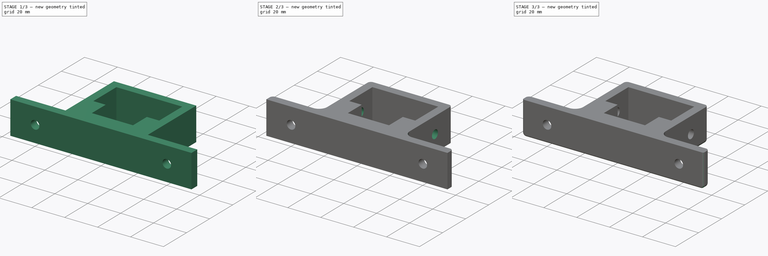
[diagram: build sequence overview — one tinted view per stage of 3, left to right]
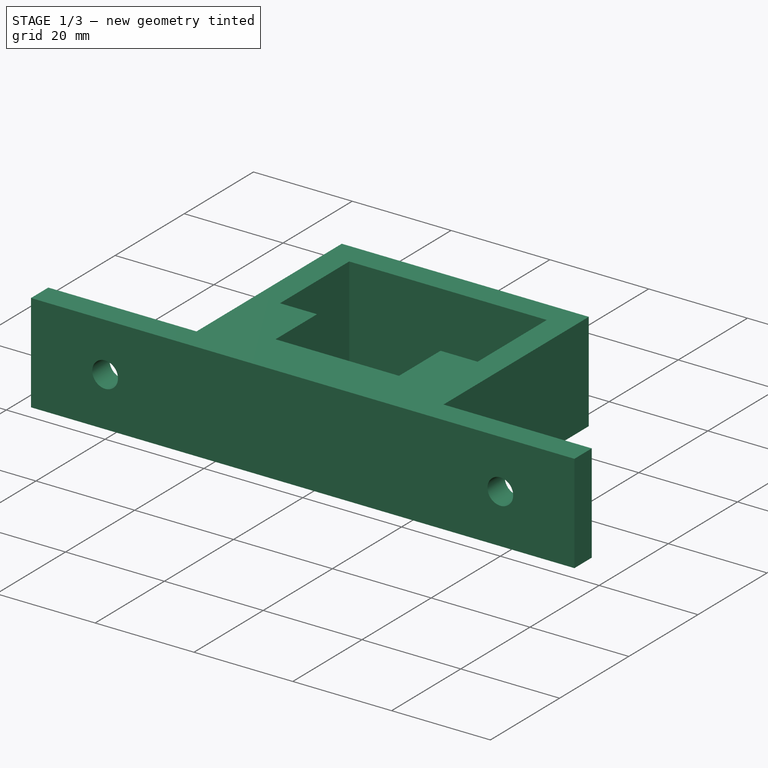
[diagram: stage 1 of 3 — iso view after this stage's code; geometry added in this stage tinted green]
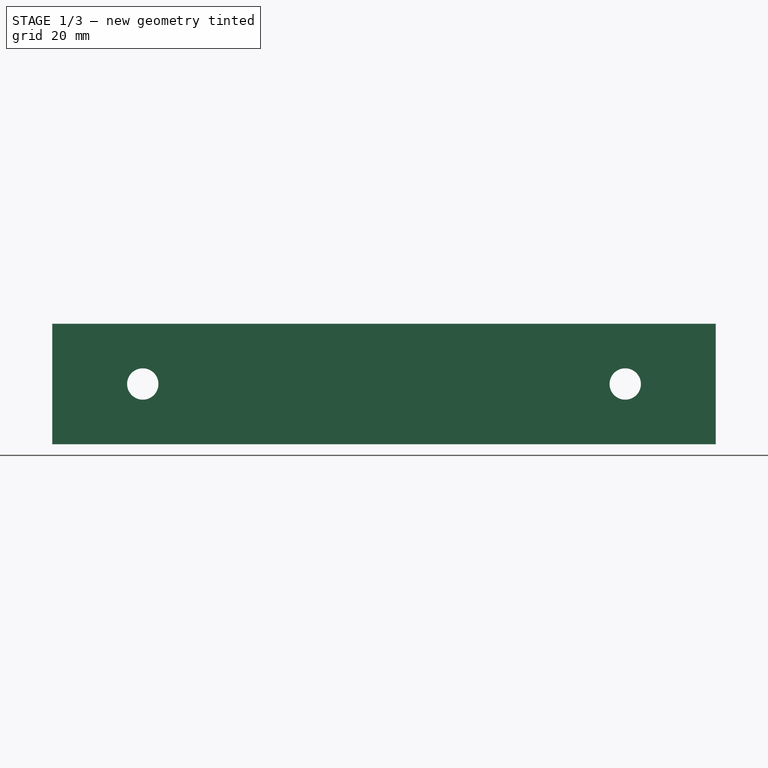
[diagram: stage 1 of 3 — front view after this stage's code; geometry added in this stage tinted green]
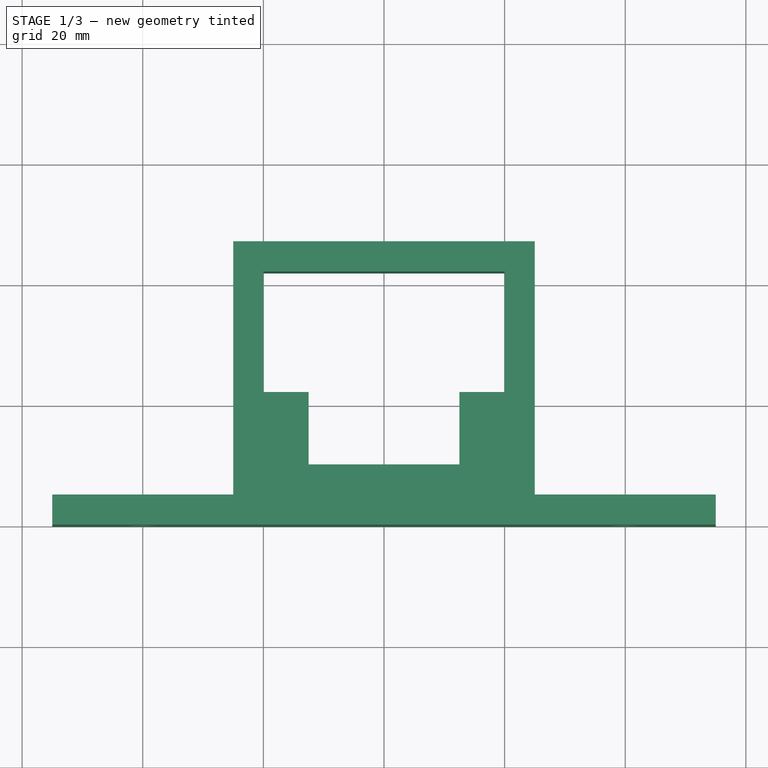
[diagram: stage 1 of 3 — top view after this stage's code; geometry added in this stage tinted green]
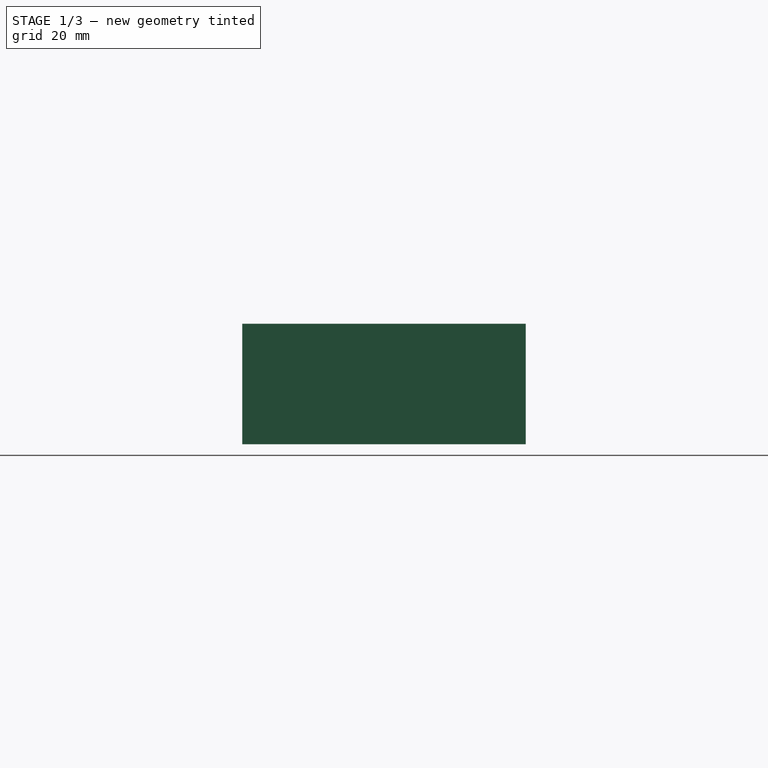
[diagram: stage 1 of 3 — right view after this stage's code; geometry added in this stage tinted green]
FCSTD DOCUMENT  (FreeCAD 1.0R38806 (Git))
Label: 40_20_mount
License: All rights reserved
LicenseURL: http://en.wikipedia.org/wiki/All_rights_reserved
objects: PartDesign::Fillet×4, Sketcher::SketchObject×3, PartDesign::Pocket×2, PartDesign::Pad×1, PartDesign::Body×1
note: 28 computed .brp shape members not serialized (recipe doc carries the construction recipe); baked Part::Feature solids carry a one-line shape summary decoded from their .brp

FEATURE [Sketcher::SketchObject] Sketch
  ArcFitTolerance = 1e-06
  AttachmentSupport = -> [XY_Plane]
  FullyConstrained = true
  MakeInternals = false
  MapMode = 5
  sketch-geometry (16):
    g0: LineSegment StartX=-55 StartY=0 StartZ=0 EndX=-55 EndY=5 EndZ=0
    g1: LineSegment StartX=-55 StartY=5 StartZ=0 EndX=-25 EndY=5 EndZ=0
    g2: LineSegment StartX=-25 StartY=5 StartZ=0 EndX=-25 EndY=47 EndZ=0
    g3: LineSegment StartX=-25 StartY=47 StartZ=0 EndX=25 EndY=47 EndZ=0
    g4: LineSegment StartX=25 StartY=47 StartZ=0 EndX=25 EndY=5 EndZ=0
    g5: LineSegment StartX=25 StartY=5 StartZ=0 EndX=55 EndY=5 EndZ=0
    g6: LineSegment StartX=55 StartY=5 StartZ=0 EndX=55 EndY=0 EndZ=0
    g7: LineSegment StartX=55 StartY=0 StartZ=0 EndX=-55 EndY=0 EndZ=0
    g8: LineSegment StartX=-20 StartY=42 StartZ=0 EndX=-20 EndY=22 EndZ=0
    g9: LineSegment StartX=-20 StartY=22 StartZ=0 EndX=-12.5 EndY=22 EndZ=0
    g10: LineSegment StartX=20 StartY=22 StartZ=0 EndX=20 EndY=42 EndZ=0
    g11: LineSegment StartX=20 StartY=42 StartZ=0 EndX=-20 EndY=42 EndZ=0
    g12: LineSegment StartX=-12.5 StartY=22 StartZ=0 EndX=-12.5 EndY=10 EndZ=0
    g13: LineSegment StartX=-12.5 StartY=10 StartZ=0 EndX=12.5 EndY=10 EndZ=0
    g14: LineSegment StartX=12.5 StartY=10 StartZ=0 EndX=12.5 EndY=22 EndZ=0
    g15: LineSegment StartX=12.5 StartY=22 StartZ=0 EndX=20 EndY=22 EndZ=0
  constraints (46):
    c: PointOnObject(g0,g-1)
    c: Vertical(g0)
    c: Coincident(g0,g1)
    c: Horizontal(g1)
    c: Coincident(g1,g2)
    c: Vertical(g2)
    c: Coincident(g2,g3)
    c: Coincident(g3,g4)
    c: Vertical(g4)
    c: Coincident(g4,g5)
    c: Horizontal(g5)
    c: Coincident(g5,g6)
    c: PointOnObject(g6,g-1)
    c: Coincident(g6,g7)
    c: Coincident(g7,g0)
    c: Coincident(g8,g9)
    c: Coincident(g15,g10)
    c: Coincident(g10,g11)
    c: Coincident(g11,g8)
    c: Vertical(g8)
    c: Vertical(g10)
    c: Horizontal(g9)
    c: Coincident(g12,g13)
    c: Horizontal(g13)
    c: Coincident(g13,g14)
    c: PointOnObject(g14,g15)
    c: Vertical(g14)
    c: Coincident(g9,g12)
    c: PointOnObject(g15,g14)
    c: Vertical(g12)
    c: Symmetric(g10,g8,g-2)
    c: Symmetric(g3,g2,g-2)
    c: Symmetric(g9,g14,g-2)
    c: DistanceX(g11,g11) = 40
    c: DistanceY(g10,g10) = 20
    c: Horizontal(g15)
    c: DistanceY(g14,g14) = 12
    c: DistanceX(g10,g3) = 5
    c: DistanceY(g10,g3) = 5
    c: DistanceY(g6,g4) = 5
    c: DistanceY(g0,g0) = 5
    c: DistanceY(g-1,g12) = 10
    c: DistanceX(g13,g13) = 25
    c: DistanceX(g5,g5) = 30
    c: Vertical(g6)
    c: DistanceX(g1,g1) = 30
FEATURE [PartDesign::Pad] Pad
  Direction = (0,0,1)
  Length = 20
  Length2 = 10
  Profile = -> Sketch
  ReferenceAxis = -> Sketch [N_Axis]
  Suppressed = false
  Type = 0
FEATURE [Sketcher::SketchObject] Sketch001
  ArcFitTolerance = 1e-06
  AttachmentSupport = -> [Pad]
  ExternalGeometry = -> [Pad]
  FullyConstrained = true
  MakeInternals = false
  MapMode = 5
  Placement = pos=(0,5,0) rot=(0,0.707107,0.707107;3.14159rad)
  sketch-geometry (2):
    g0: Circle CenterX=-40 CenterY=10 CenterZ=0 NormalX=0 NormalY=0 NormalZ=1 AngleXU=0 Radius=2.6
    g1: Circle CenterX=40 CenterY=10 CenterZ=0 NormalX=0 NormalY=0 NormalZ=1 AngleXU=0 Radius=2.6
  constraints (6):
    c: Diameter(g0) = 5.2
    c: Diameter(g1) = 5.2
    c: DistanceX(g1,g-4) = 15
    c: DistanceY(g1,g-4) = 10
    c: DistanceX(g-3,g0) = 15
    c: DistanceY(g0,g-3) = 10
FEATURE [PartDesign::Pocket] Pocket
  BaseFeature = -> Pad
  Direction = (0,-1,2e-16)
  Length = 5
  Length2 = 5
  Profile = -> Sketch001
  ReferenceAxis = -> Sketch001 [N_Axis]
  Suppressed = false
  Type = 0
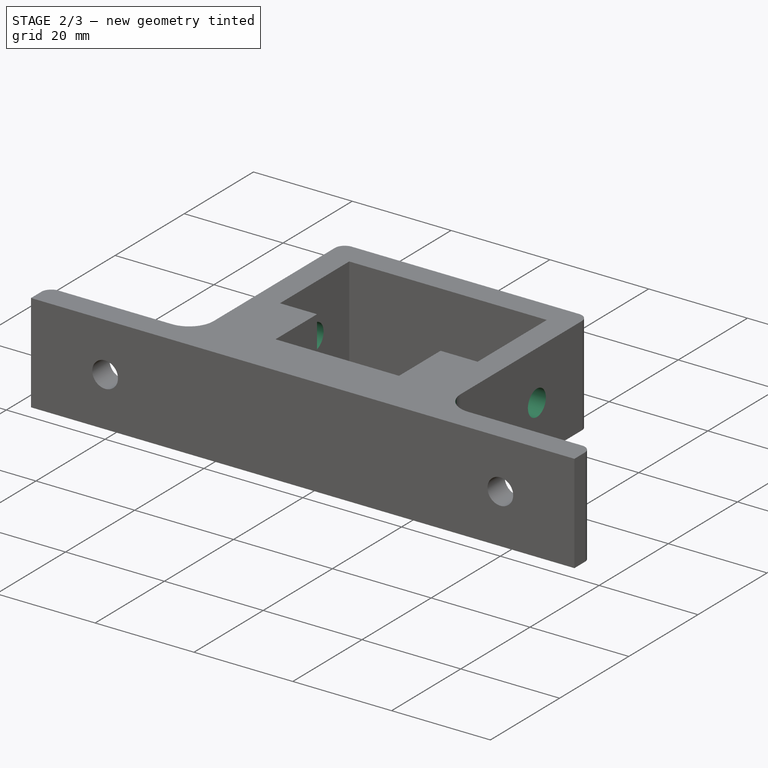
[diagram: stage 2 of 3 — iso view after this stage's code; geometry added in this stage tinted green]
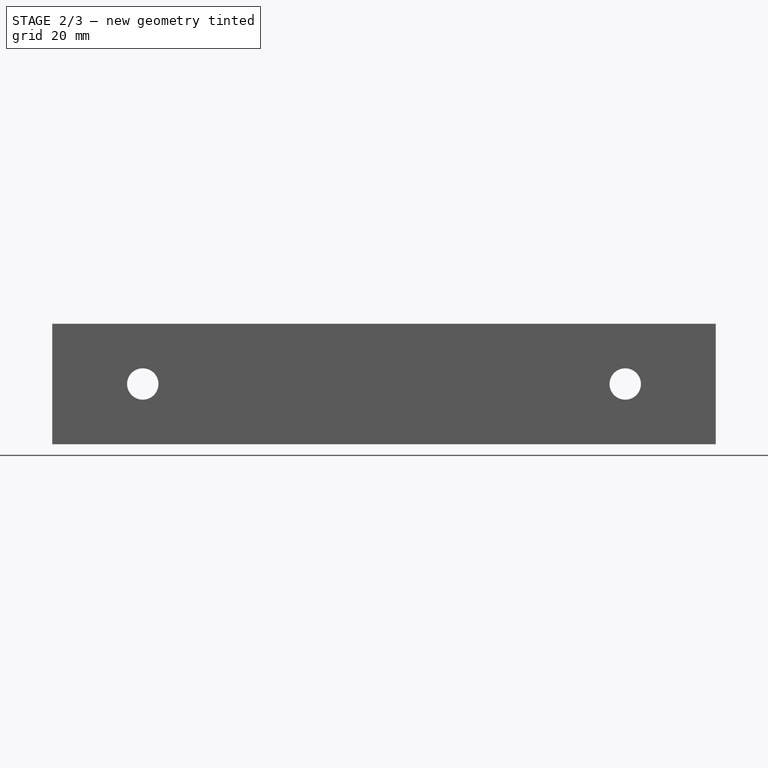
[diagram: stage 2 of 3 — front view after this stage's code; geometry added in this stage tinted green]
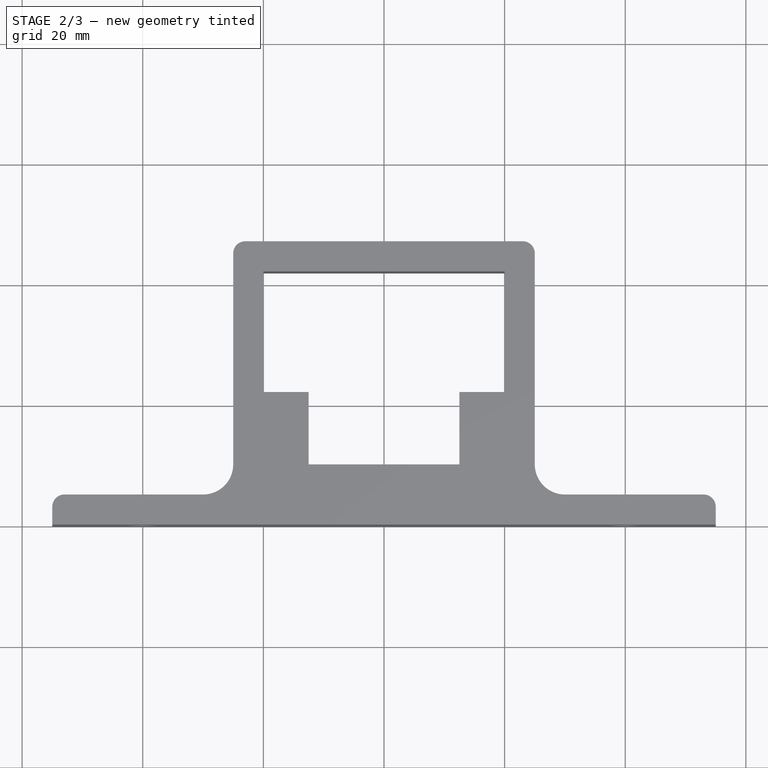
[diagram: stage 2 of 3 — top view after this stage's code; geometry added in this stage tinted green]
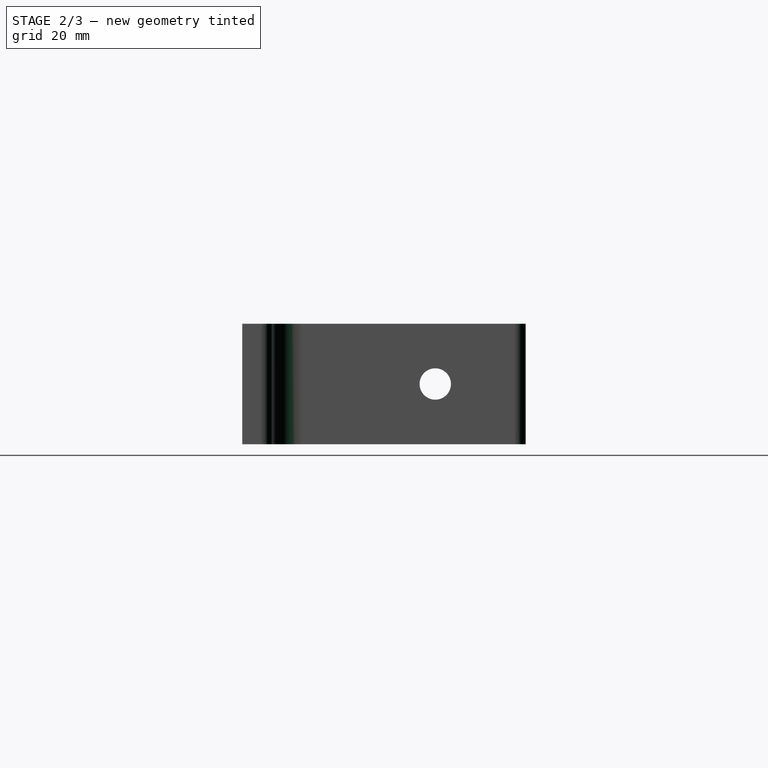
[diagram: stage 2 of 3 — right view after this stage's code; geometry added in this stage tinted green]
FEATURE [Sketcher::SketchObject] Sketch002
  ArcFitTolerance = 1e-06
  AttachmentSupport = -> [Pocket]
  ExternalGeometry = -> [Pocket]
  FullyConstrained = true
  MakeInternals = false
  MapMode = 5
  Placement = pos=(20,0,0) rot=(0.57735,-0.57735,-0.57735;2.0944rad)
  sketch-geometry (1):
    g0: Circle CenterX=-32 CenterY=10 CenterZ=0 NormalX=0 NormalY=0 NormalZ=1 AngleXU=0 Radius=2.6
  constraints (3):
    c: Diameter(g0) = 5.2
    c: DistanceX(g0,g-3) = 10
    c: DistanceY(g0,g-3) = 10
FEATURE [PartDesign::Pocket] Pocket001
  BaseFeature = -> Pocket
  Direction = (1,0,0)
  Length = 5
  Length2 = 5
  Midplane = true
  Profile = -> Sketch002
  ReferenceAxis = -> Sketch002 [N_Axis]
  Suppressed = false
  Type = 1
FEATURE [PartDesign::Fillet] Fillet
  Base = -> Pocket001 [Edge47,Edge12]
  BaseFeature = -> Pocket001
  Radius = 5
  SupportTransform = false
  Suppressed = false
  UseAllEdges = false
FEATURE [PartDesign::Fillet] Fillet001
  Base = -> Fillet [Edge3,Edge44,Edge48,Edge49]
  BaseFeature = -> Fillet
  Radius = 2
  SupportTransform = false
  Suppressed = false
  UseAllEdges = false
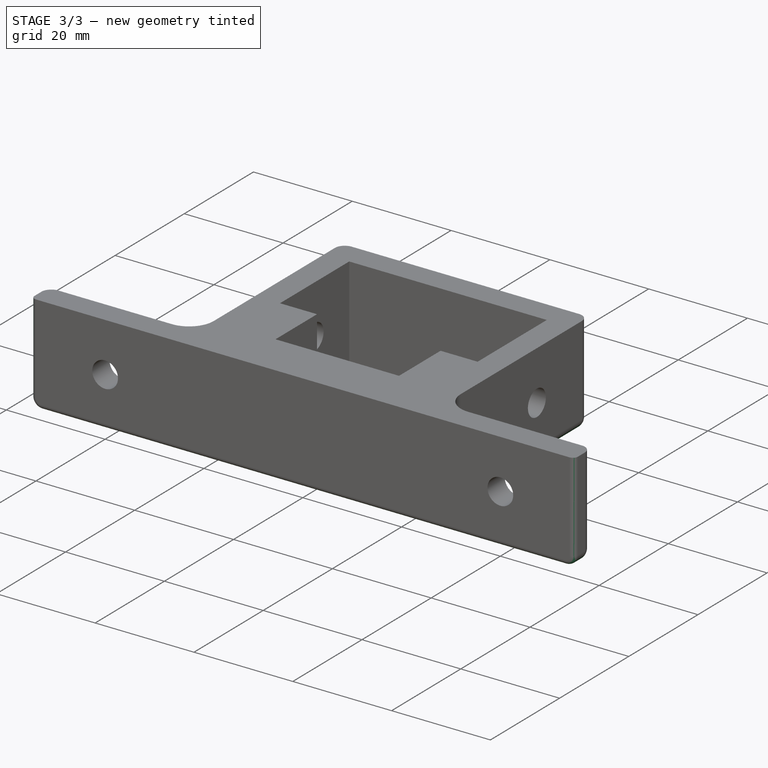
[diagram: stage 3 of 3 — iso view after this stage's code; geometry added in this stage tinted green]
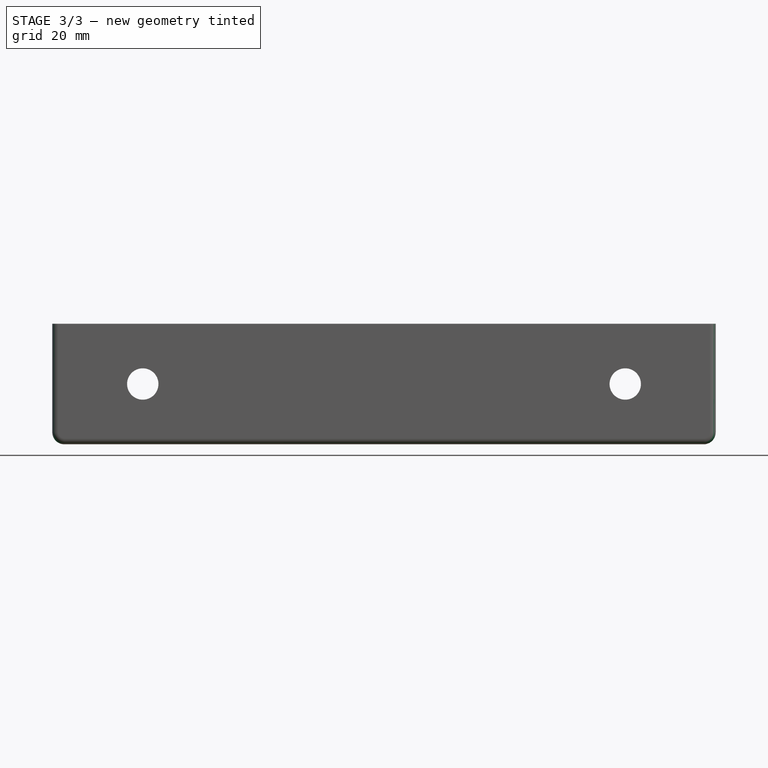
[diagram: stage 3 of 3 — front view after this stage's code; geometry added in this stage tinted green]
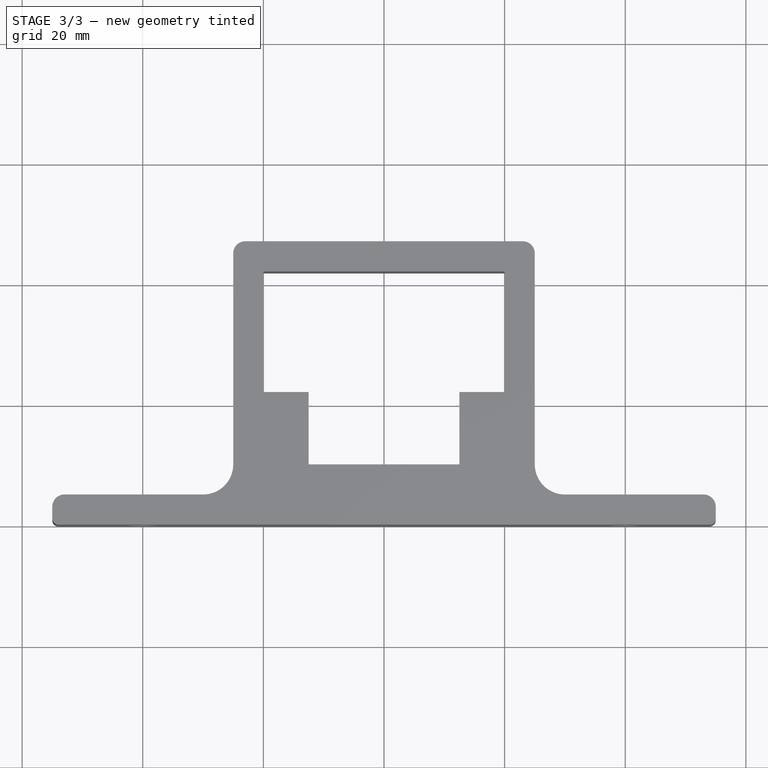
[diagram: stage 3 of 3 — top view after this stage's code; geometry added in this stage tinted green]
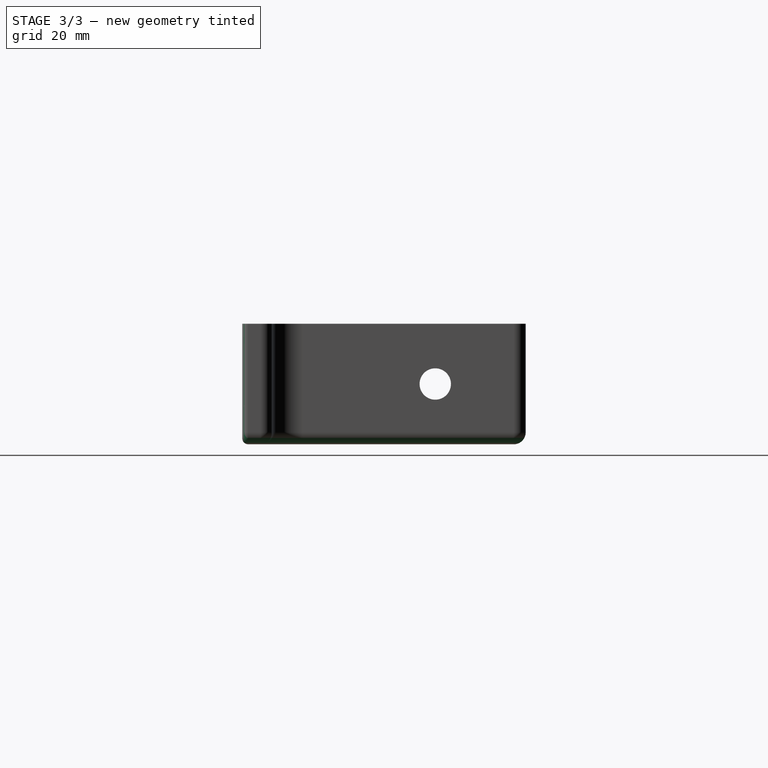
[diagram: stage 3 of 3 — right view after this stage's code; geometry added in this stage tinted green]
FEATURE [PartDesign::Fillet] Fillet002
  Base = -> Fillet001 [Edge17]
  BaseFeature = -> Fillet001
  Radius = 2
  SupportTransform = false
  Suppressed = false
  UseAllEdges = false
FEATURE [PartDesign::Fillet] Fillet003
  Base = -> Fillet002 [Edge40]
  BaseFeature = -> Fillet002
  Radius = 1
  SupportTransform = false
  Suppressed = false
  UseAllEdges = false
FEATURE [PartDesign::Body] Body
  AllowCompound = false
  Group = -> [Sketch,Pad,Sketch001,Pocket,Sketch002,Pocket001,Fillet,Fillet001,Fillet002,Fillet003]
  Origin = -> Origin
  Tip = -> Fillet003
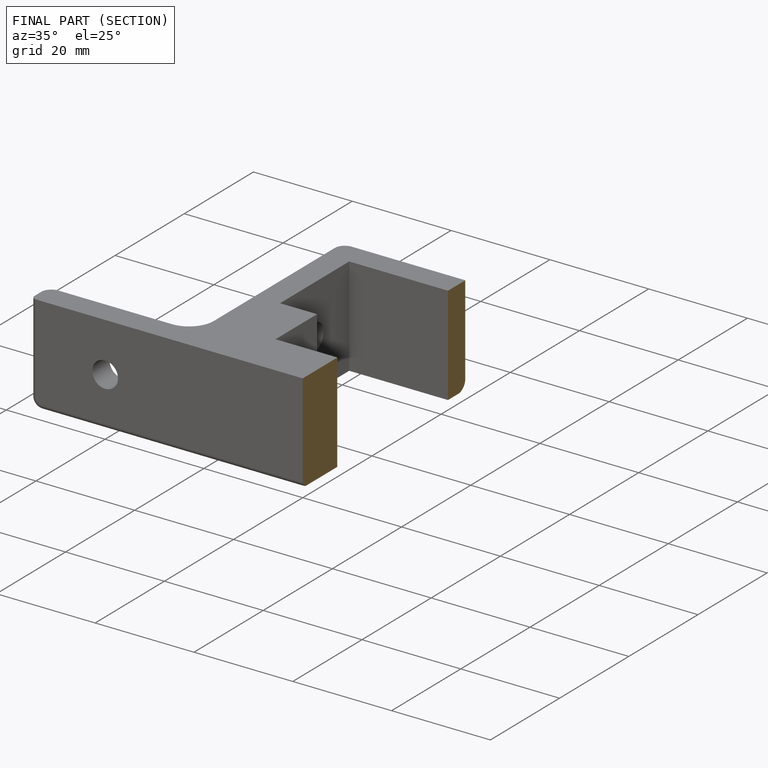
[diagram: finished part — half-section view (interior)]
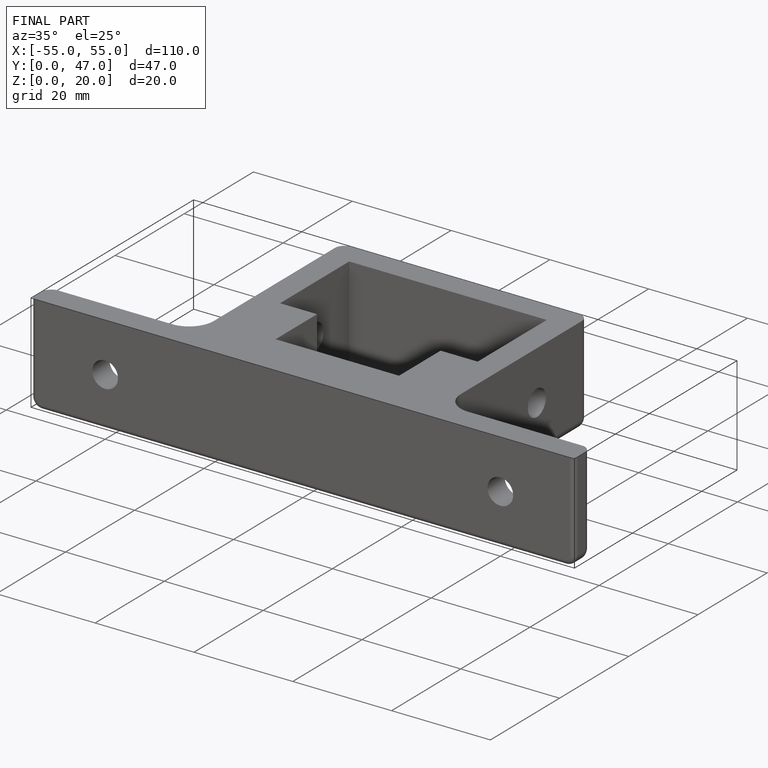
[diagram: finished part — iso view with bounding-box wireframe]
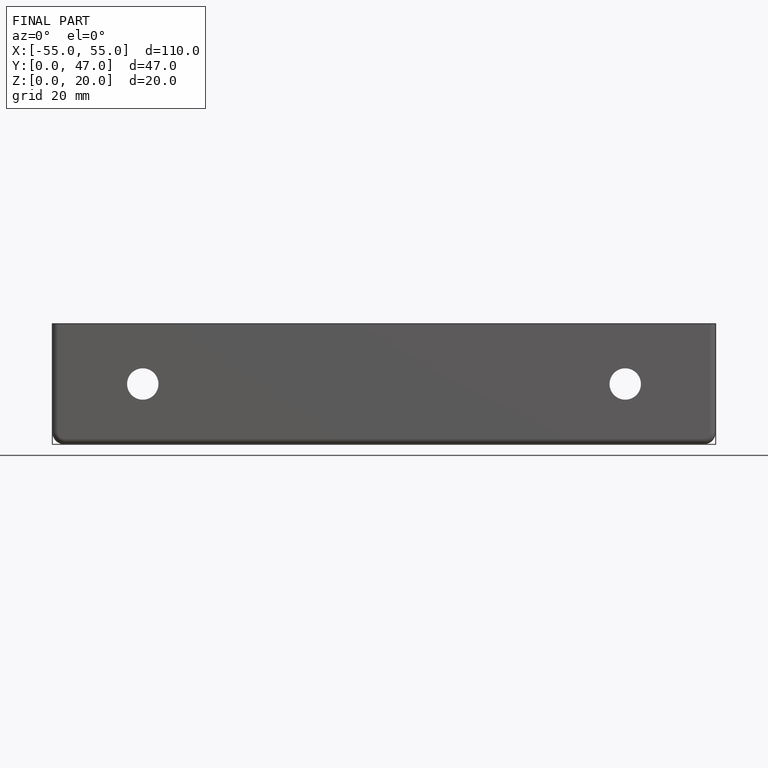
[diagram: finished part — front view with bounding-box wireframe]
